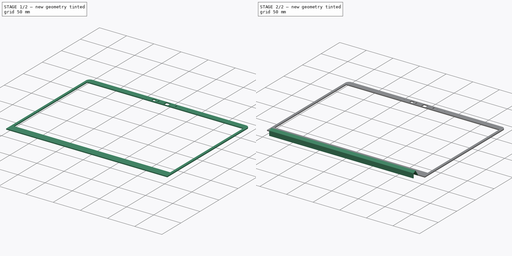
[diagram: build sequence overview — one tinted view per stage of 2, left to right]
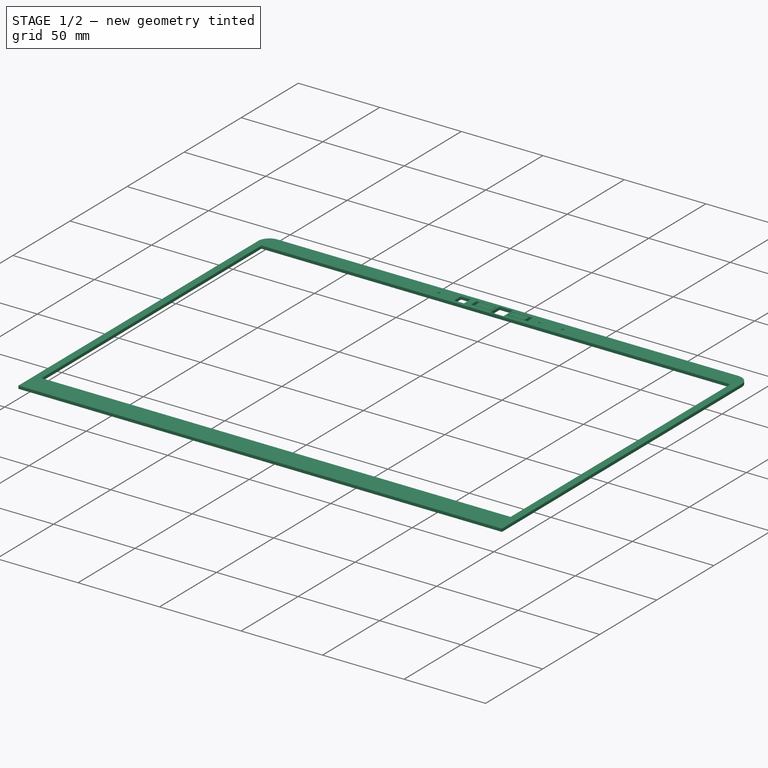
[diagram: stage 1 of 2 — iso view after this stage's code; geometry added in this stage tinted green]
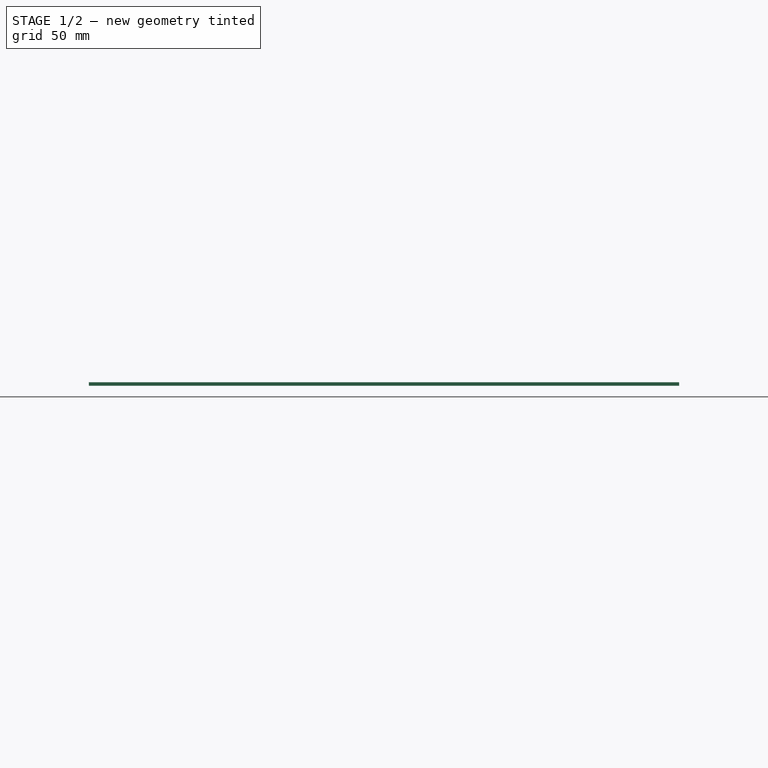
[diagram: stage 1 of 2 — front view after this stage's code; geometry added in this stage tinted green]
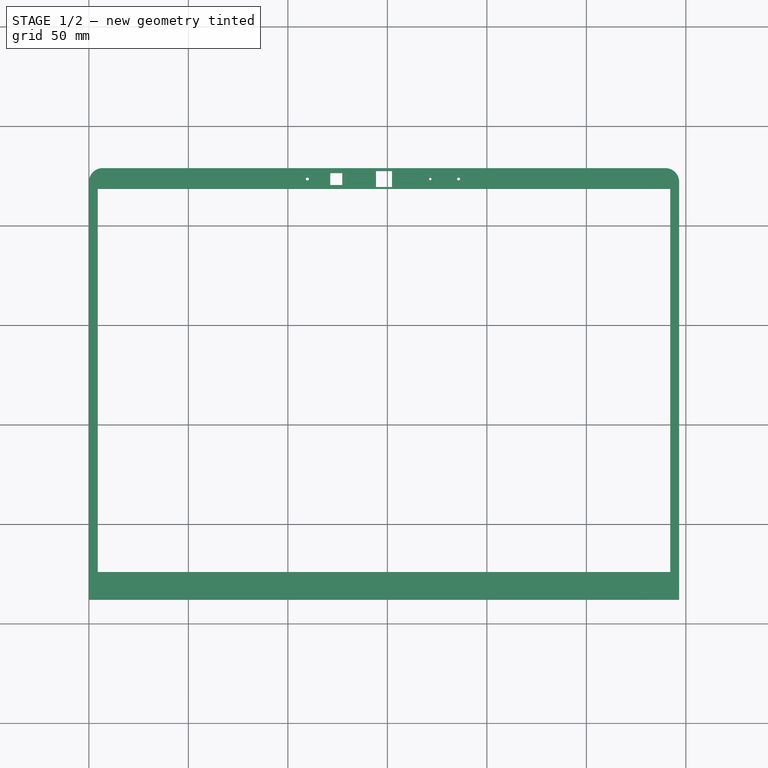
[diagram: stage 1 of 2 — top view after this stage's code; geometry added in this stage tinted green]
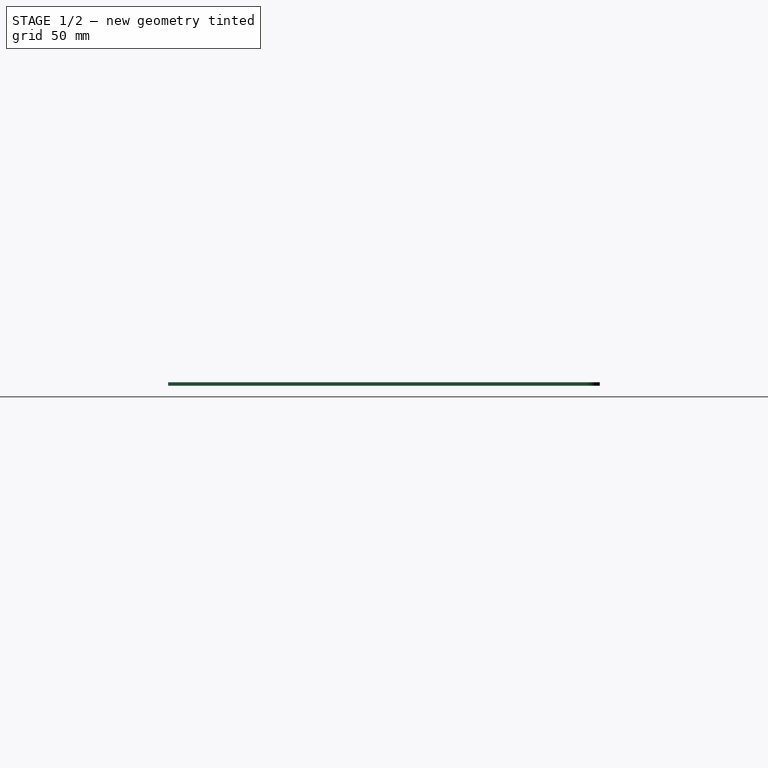
[diagram: stage 1 of 2 — right view after this stage's code; geometry added in this stage tinted green]
FCSTD DOCUMENT  (FreeCAD 0.20R29603 (Git))
Label: Bezel
License: All rights reserved
LicenseURL: http://en.wikipedia.org/wiki/All_rights_reserved
objects: Sketcher::SketchObject×3, PartDesign::Pad×2, PartDesign::Pocket×1, PartDesign::Body×1
note: 10 computed .brp shape members not serialized (recipe doc carries the construction recipe); baked Part::Feature solids carry a one-line shape summary decoded from their .brp

FEATURE [Sketcher::SketchObject] Sketch009  label="Sketch_BezelMain"
  AttachmentOffset = pos=(0,0,12.53) rot=(0,0,1;0rad)
  FullyConstrained = true
  MapMode = 5
  Placement = pos=(0,0,12.53) rot=(0,0,1;0rad)
  Support = -> [XY_Plane002]
  expr: .AttachmentOffset.Base.z = 15.88 - 3.35
  sketch-geometry (36):
    g0: LineSegment StartX=0 StartY=0 StartZ=0 EndX=296.63 EndY=0 EndZ=0
    g1: LineSegment StartX=296.63 StartY=0 StartZ=0 EndX=296.63 EndY=228.98 EndZ=0
    g2: LineSegment StartX=296.63 StartY=228.98 StartZ=0 EndX=0 EndY=228.98 EndZ=0
    g3: LineSegment StartX=0 StartY=228.98 StartZ=0 EndX=0 EndY=0 EndZ=0
    g4: LineSegment StartX=7 StartY=228.98 StartZ=0 EndX=289.63 EndY=228.98 EndZ=0
    g5: LineSegment StartX=296.63 StartY=11.98 StartZ=0 EndX=0 EndY=11.98 EndZ=0
    g6: LineSegment StartX=296.63 StartY=221.98 StartZ=0 EndX=296.63 EndY=11.98 EndZ=0
    g7: LineSegment StartX=0 StartY=11.98 StartZ=0 EndX=0 EndY=221.98 EndZ=0
    g8: ArcOfCircle CenterX=7 CenterY=221.98 CenterZ=0 NormalX=0 NormalY=0 NormalZ=1 AngleXU=0 Radius=7 StartAngle=1.5708 EndAngle=3.14159
    g9: GeomPoint X=0 Y=228.98 Z=0
    g10: ArcOfCircle CenterX=289.63 CenterY=221.98 CenterZ=0 NormalX=0 NormalY=0 NormalZ=1 AngleXU=0 Radius=7 StartAngle=-9e-16 EndAngle=1.5708
    g11: GeomPoint X=296.63 Y=228.98 Z=0
    g12: LineSegment StartX=4.5 StartY=218.48 StartZ=0 EndX=292.13 EndY=218.48 EndZ=0
    g13: LineSegment StartX=292.13 StartY=218.48 StartZ=0 EndX=292.13 EndY=25.98 EndZ=0
    g14: LineSegment StartX=292.13 StartY=25.98 StartZ=0 EndX=4.5 EndY=25.98 EndZ=0
    g15: LineSegment StartX=4.5 StartY=25.98 StartZ=0 EndX=4.5 EndY=218.48 EndZ=0
    g16: LineSegment StartX=144.315 StartY=227.48 StartZ=0 EndX=152.315 EndY=227.48 EndZ=0
    g17: LineSegment StartX=152.315 StartY=227.48 StartZ=0 EndX=152.315 EndY=219.48 EndZ=0
    g18: LineSegment StartX=152.315 StartY=219.48 StartZ=0 EndX=144.315 EndY=219.48 EndZ=0
    g19: LineSegment StartX=144.315 StartY=219.48 StartZ=0 EndX=144.315 EndY=227.48 EndZ=0
    g20: LineSegment StartX=144.315 StartY=227.48 StartZ=0 EndX=152.315 EndY=219.48 EndZ=0
    g21: LineSegment StartX=152.315 StartY=227.48 StartZ=0 EndX=144.315 EndY=219.48 EndZ=0
    g22: Circle CenterX=148.315 CenterY=223.48 CenterZ=0 NormalX=0 NormalY=0 NormalZ=1 AngleXU=0 Radius=1.5
    g23: Circle CenterX=171.565 CenterY=223.48 CenterZ=0 NormalX=0 NormalY=0 NormalZ=1 AngleXU=0 Radius=0.625
    g24: LineSegment StartX=148.315 StartY=223.48 StartZ=0 EndX=0 EndY=223.48 EndZ=0
    g25: LineSegment StartX=148.315 StartY=223.48 StartZ=0 EndX=296.63 EndY=223.48 EndZ=0
    g26: Circle CenterX=185.815 CenterY=223.48 CenterZ=0 NormalX=0 NormalY=0 NormalZ=1 AngleXU=0 Radius=0.75
    g27: LineSegment StartX=121.315 StartY=226.48 StartZ=0 EndX=127.315 EndY=226.48 EndZ=0
    g28: LineSegment StartX=127.315 StartY=226.48 StartZ=0 EndX=127.315 EndY=220.48 EndZ=0
    g29: LineSegment StartX=127.315 StartY=220.48 StartZ=0 EndX=121.315 EndY=220.48 EndZ=0
    g30: LineSegment StartX=121.315 StartY=220.48 StartZ=0 EndX=121.315 EndY=226.48 EndZ=0
    g31: LineSegment StartX=121.315 StartY=226.48 StartZ=0 EndX=124.315 EndY=223.48 EndZ=0
    g32: LineSegment StartX=124.315 StartY=223.48 StartZ=0 EndX=127.315 EndY=226.48 EndZ=0
    g33: LineSegment StartX=127.315 StartY=220.48 StartZ=0 EndX=124.315 EndY=223.48 EndZ=0
    g34: LineSegment StartX=124.315 StartY=223.48 StartZ=0 EndX=121.315 EndY=220.48 EndZ=0
    g35: Circle CenterX=109.815 CenterY=223.48 CenterZ=0 NormalX=0 NormalY=0 NormalZ=1 AngleXU=0 Radius=0.75
  constraints (97):
    c: Coincident(g0,g1)
    c: Coincident(g1,g2)
    c: Coincident(g3,g0)
    c: Horizontal(g0)
    c: Horizontal(g2)
    c: Vertical(g1)
    c: Vertical(g3)
    c: Coincident(g0,g-1)
    c: DistanceX(g0,g0) = 296.63
    c: DistanceY(g1,g1) = 228.98
    c: PointOnObject(g9,g3)
    c: Coincident(g11,g1)
    c: Horizontal(g4)
    c: PointOnObject(g5,g1)
    c: PointOnObject(g5,g3)
    c: Horizontal(g5)
    c: DistanceY(g5,g11) = 217
    c: Coincident(g6,g5)
    c: Coincident(g7,g5)
    c: PointOnObject(g9,g4)
    c: PointOnObject(g9,g7)
    c: Tangent(g4,g8) = 1.5708
    c: Tangent(g7,g8) = 1.5708
    c: Radius(g8) = 7
    c: PointOnObject(g11,g4)
    c: PointOnObject(g11,g6)
    c: Tangent(g4,g10) = 1.5708
    c: Tangent(g6,g10) = 1.5708
    c: Radius(g10) = 7
    c: Horizontal(g12)
    c: Coincident(g12,g13)
    c: Vertical(g13)
    c: Coincident(g13,g14)
    c: Horizontal(g14)
    c: Coincident(g14,g15)
    c: Coincident(g15,g12)
    c: Vertical(g15)
    c: DistanceY(g12,g4) = 10.5
    c: DistanceY(g5,g14) = 14
    c: DistanceX(g5,g14) = 4.5
    c: DistanceX(g13,g5) = 4.5
    c: Coincident(g16,g17)
    c: Coincident(g17,g18)
    c: Coincident(g18,g19)
    c: Coincident(g19,g16)
    c: Horizontal(g16)
    c: Horizontal(g18)
    c: Vertical(g17)
    c: Vertical(g19)
    c: DistanceX(g18,g17) = 8
    c: Equal(g18,g17)
    c: DistanceY(g12,g18) = 1
    c: Coincident(g20,g16)
    c: Coincident(g20,g17)
    c: Coincident(g21,g16)
    c: Coincident(g21,g18)
    c: PointOnObject(g22,g21)
    c: PointOnObject(g22,g20)
    c: Radius(g22) = 1.5
    c: Radius(g23) = 0.625
    c: Coincident(g24,g22)
    c: PointOnObject(g24,g3)
    c: Horizontal(g24)
    c: Coincident(g25,g22)
    c: PointOnObject(g25,g1)
    c: Horizontal(g25)
    c: Equal(g24,g25)
    c: PointOnObject(g23,g25)
    c: PointOnObject(g26,g25)
    c: DistanceX(g23,g26) = 14.25
    c: Radius(g26) = 0.75
    c: Coincident(g27,g28)
    c: Coincident(g28,g29)
    c: Coincident(g29,g30)
    c: Coincident(g30,g27)
    c: Horizontal(g27)
    c: Horizontal(g29)
    c: Vertical(g28)
    c: Vertical(g30)
    c: Equal(g28,g29)
    c: DistanceX(g29,g29) = 6
    c: Coincident(g31,g27)
    c: PointOnObject(g31,g24)
    c: Coincident(g32,g31)
    c: Coincident(g32,g27)
    c: Coincident(g33,g28)
    c: Coincident(g33,g31)
    c: Coincident(g34,g31)
    c: Coincident(g34,g29)
    c: Equal(g31,g33)
    c: Equal(g32,g34)
    c: PointOnObject(g35,g24)
    c: DistanceX(g35,g29) = 11.5
    c: Radius(g35) = 0.75
    c: DistanceX(g17,g23) = 19.25
    c: DistanceX(g28,g18) = 17
    c: Coincident(g3,g2)
FEATURE [PartDesign::Pad] Pad002  label="Pad_BezelMain"
  Direction = (0,0,1)
  Length = 1.78
  Length2 = 10
  Profile = -> Sketch009
  ReferenceAxis = -> Sketch009 [N_Axis]
  Reversed = true
  Type = 0
FEATURE [Sketcher::SketchObject] Sketch  label="Sketch_BezelSwitches"
  ExternalGeometry = -> [Sketch009]
  FullyConstrained = false
  MapMode = 2
  Placement = pos=(0,0,12.53) rot=(0,0,1;0rad)
  Support = -> [Sketch009]
  sketch-geometry (24):
    g0: LineSegment StartX=133.065 StartY=221.73 StartZ=0 EndX=143.065 EndY=221.73 EndZ=0
    g1: LineSegment StartX=143.065 StartY=221.73 StartZ=0 EndX=143.065 EndY=225.98 EndZ=0
    g2: LineSegment StartX=143.065 StartY=225.98 StartZ=0 EndX=133.065 EndY=225.98 EndZ=0
    g3: LineSegment StartX=133.065 StartY=225.98 StartZ=0 EndX=133.065 EndY=221.73 EndZ=0
    g4: LineSegment StartX=143.065 StartY=225.98 StartZ=0 EndX=143.065 EndY=226.23 EndZ=0
    g5: LineSegment StartX=143.065 StartY=221.73 StartZ=0 EndX=143.065 EndY=221.48 EndZ=0
    g6: LineSegment StartX=143.065 StartY=221.73 StartZ=0 EndX=143.315 EndY=221.73 EndZ=0
    g7: LineSegment StartX=131.065 StartY=226.23 StartZ=0 EndX=131.065 EndY=221.48 EndZ=0
    g8: LineSegment StartX=143.315 StartY=226.23 StartZ=0 EndX=143.315 EndY=221.48 EndZ=0
    g9: LineSegment StartX=143.315 StartY=226.23 StartZ=0 EndX=131.065 EndY=226.23 EndZ=0
    g10: LineSegment StartX=131.065 StartY=221.48 StartZ=0 EndX=143.315 EndY=221.48 EndZ=0
    g11: LineSegment StartX=153.565 StartY=221.73 StartZ=0 EndX=163.565 EndY=221.73 EndZ=0
    g12: LineSegment StartX=163.565 StartY=221.73 StartZ=0 EndX=163.565 EndY=225.98 EndZ=0
    g13: LineSegment StartX=163.565 StartY=225.98 StartZ=0 EndX=153.565 EndY=225.98 EndZ=0
    g14: LineSegment StartX=153.565 StartY=225.98 StartZ=0 EndX=153.565 EndY=221.73 EndZ=0
    g15: LineSegment StartX=153.315 StartY=221.48 StartZ=0 EndX=165.565 EndY=221.48 EndZ=0
    g16: LineSegment StartX=165.565 StartY=221.48 StartZ=0 EndX=165.565 EndY=226.23 EndZ=0
    g17: LineSegment StartX=165.565 StartY=226.23 StartZ=0 EndX=153.315 EndY=226.23 EndZ=0
    g18: LineSegment StartX=153.315 StartY=226.23 StartZ=0 EndX=153.315 EndY=221.48 EndZ=0
    g19: LineSegment StartX=143.315 StartY=221.73 StartZ=0 EndX=144.315 EndY=221.73 EndZ=0
    g20: LineSegment StartX=144.315 StartY=221.73 StartZ=0 EndX=152.315 EndY=221.73 EndZ=0
    g21: LineSegment StartX=153.315 StartY=221.48 StartZ=0 EndX=143.315 EndY=221.48 EndZ=0
    g22: LineSegment StartX=152.315 StartY=221.73 StartZ=0 EndX=153.315 EndY=221.73 EndZ=0
    g23: LineSegment StartX=153.315 StartY=221.73 StartZ=0 EndX=153.565 EndY=221.73 EndZ=0
  constraints (70):
    c: Coincident(g0,g1)
    c: Coincident(g1,g2)
    c: Coincident(g2,g3)
    c: Coincident(g3,g0)
    c: Horizontal(g0)
    c: Horizontal(g2)
    c: Vertical(g1)
    c: Vertical(g3)
    c: DistanceX(g2,g1) = 10
    c: DistanceY(g0,g2) = 4.25
    c: Coincident(g4,g1)
    c: Vertical(g4)
    c: Coincident(g5,g0)
    c: Vertical(g5)
    c: Coincident(g6,g0)
    c: Horizontal(g6)
    c: Equal(g5,g6)
    c: Equal(g5,g4)
    c: Coincident(g9,g8)
    c: Coincident(g9,g7)
    c: Horizontal(g9)
    c: Coincident(g10,g7)
    c: Coincident(g10,g8)
    c: Horizontal(g10)
    c: PointOnObject(g6,g8)
    c: PointOnObject(g5,g10)
    c: PointOnObject(g4,g9)
    c: DistanceX(g9,g9) = 12.25
    c: DistanceY(g7,g7) = 4.75
    c: Vertical(g7)
    c: Vertical(g8)
    c: DistanceY(g7,g-3) = 2.75
    c: Coincident(g11,g12)
    c: Coincident(g12,g13)
    c: Coincident(g13,g14)
    c: Coincident(g14,g11)
    c: Horizontal(g11)
    c: Horizontal(g13)
    c: Vertical(g12)
    c: Vertical(g14)
    c: Coincident(g15,g16)
    c: Coincident(g16,g17)
    c: Coincident(g17,g18)
    c: Coincident(g18,g15)
    c: Horizontal(g15)
    c: Horizontal(g17)
    c: Vertical(g16)
    c: Vertical(g18)
    c: Equal(g17,g9)
    c: Equal(g18,g8)
    c: Equal(g1,g14)
    c: Equal(g2,g13)
    c: Coincident(g6,g19)
    c: PointOnObject(g19,g-4)
    c: Horizontal(g19)
    c: Coincident(g19,g20)
    c: PointOnObject(g20,g-5)
    c: Horizontal(g20)
    c: Coincident(g15,g21)
    c: Coincident(g21,g8)
    c: Horizontal(g21)
    c: Coincident(g20,g22)
    c: PointOnObject(g22,g18)
    c: Horizontal(g22)
    c: Coincident(g22,g23)
    c: Coincident(g23,g11)
    c: Horizontal(g23)
    c: DistanceX(g19,g19) = 1
    c: Equal(g19,g22)
    c: Equal(g23,g6)
FEATURE [PartDesign::Pocket] Pocket  label="Pocket_BezelSwitches"
  BaseFeature = -> Pad002
  Direction = (0,0,-1)
  Length = 1.7799
  Length2 = 5
  Profile = -> Sketch
  ReferenceAxis = -> Sketch [N_Axis]
  Refine = true
  Type = 0
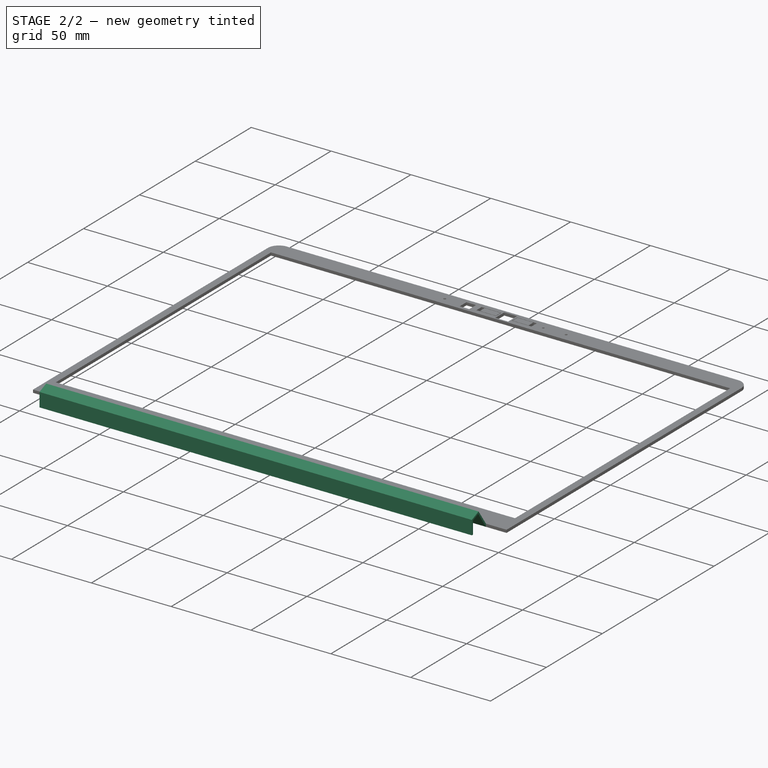
[diagram: stage 2 of 2 — iso view after this stage's code; geometry added in this stage tinted green]
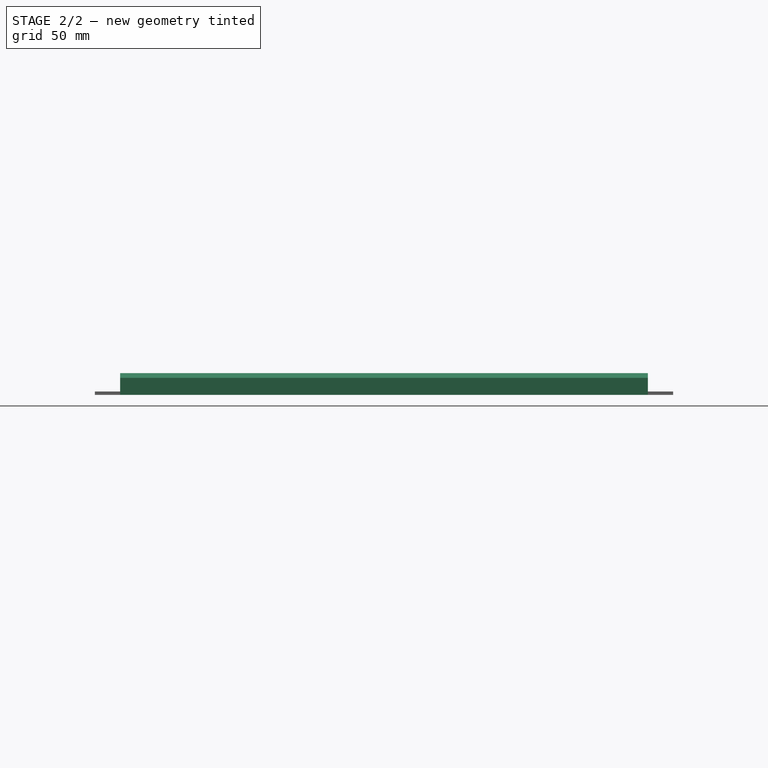
[diagram: stage 2 of 2 — front view after this stage's code; geometry added in this stage tinted green]
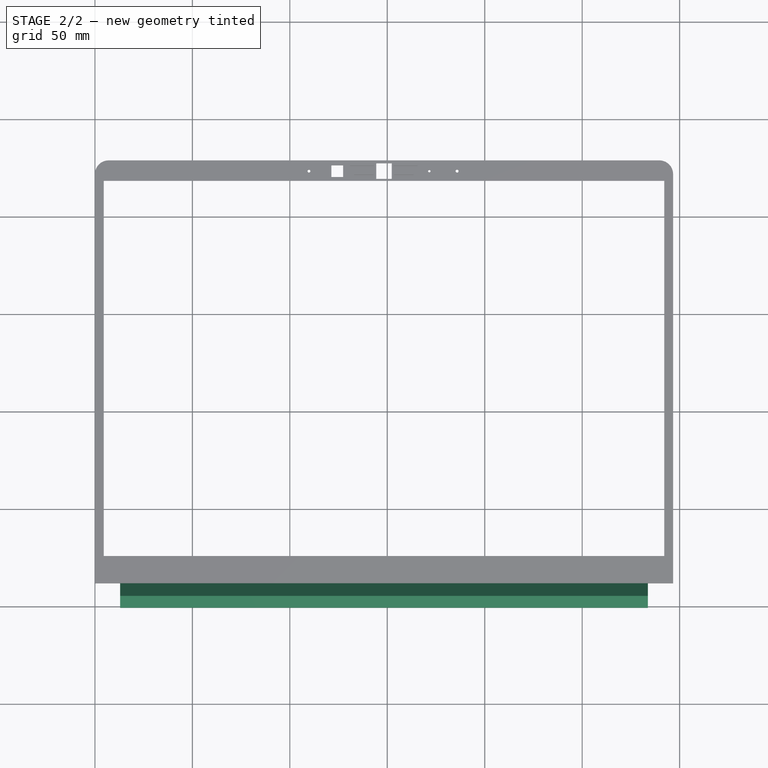
[diagram: stage 2 of 2 — top view after this stage's code; geometry added in this stage tinted green]
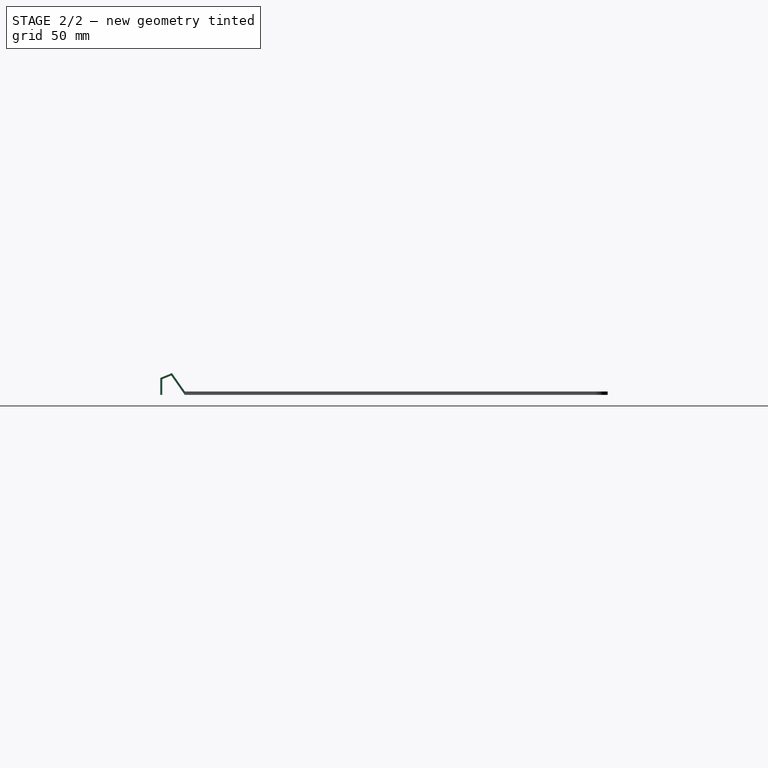
[diagram: stage 2 of 2 — right view after this stage's code; geometry added in this stage tinted green]
FEATURE [Sketcher::SketchObject] Sketch010
  ExternalGeometry = -> [Sketch009,Pocket]
  FullyConstrained = true
  MapMode = 5
  Placement = pos=(0,0,0) rot=(0.57735,0.57735,0.57735;2.0944rad)
  Support = -> [YZ_Plane002]
  sketch-geometry (8):
    g0: LineSegment StartX=11.98 StartY=12.53 StartZ=0 EndX=5.38387 EndY=21.9502 EndZ=0
    g1: LineSegment StartX=5.38387 StartY=21.9502 StartZ=0 EndX=-0.621346 EndY=19.4628 EndZ=0
    g2: LineSegment StartX=-0.621346 StartY=19.4628 StartZ=0 EndX=-0.621346 EndY=10.75 EndZ=0
    g3: LineSegment StartX=-0.621346 StartY=10.75 StartZ=0 EndX=0.378654 EndY=10.75 EndZ=0
    g4: LineSegment StartX=0.378654 StartY=10.75 StartZ=0 EndX=0.378654 EndY=18.7946 EndZ=0
    g5: LineSegment StartX=0.378654 StartY=18.7946 StartZ=0 EndX=5.02506 EndY=20.7192 EndZ=0
    g6: LineSegment StartX=5.02506 StartY=20.7192 StartZ=0 EndX=11.98 EndY=10.75 EndZ=0
    g7: LineSegment StartX=11.98 StartY=12.53 StartZ=0 EndX=11.98 EndY=10.75 EndZ=0
  constraints (23):
    c: Coincident(g0,g-3)
    c: Distance(g0) = 11.5
    c: Angle(g-4,g0) = 2.18166
    c: Coincident(g1,g0)
    c: Distance(g1) = 6.5
    c: Angle(g0,g1,g0) = 1.35263
    c: Coincident(g2,g1)
    c: Vertical(g2)
    c: DistanceY(g-4,g-4) = 0
    c: DistanceY(g-5,g2) = 0
    c: Coincident(g2,g3)
    c: Coincident(g3,g4)
    c: Coincident(g4,g5)
    c: Coincident(g5,g6)
    c: Parallel(g4,g2)
    c: Parallel(g5,g1)
    c: Coincident(g7,g0)
    c: Coincident(g7,g-5)
    c: Coincident(g7,g6)
    c: Distance(g5,g0) = 1
    c: Distance(g4,g2) = 1
    c: Horizontal(g3)
    c: Distance(g4,g1) = 1
FEATURE [PartDesign::Pad] Pad
  BaseFeature = -> Pocket
  Direction = (1,-2e-16,3e-16)
  Length = 283.73
  Length2 = -12.9
  Offset = 12.9
  Profile = -> Sketch010
  ReferenceAxis = -> Sketch010 [N_Axis]
  Refine = true
  Type = 4
FEATURE [PartDesign::Body] Body002  label="Bezel"
  Group = -> [Sketch009,Pad002,Sketch,Pocket,Sketch010,Pad]
  Origin = -> Origin002
  Tip = -> Pad
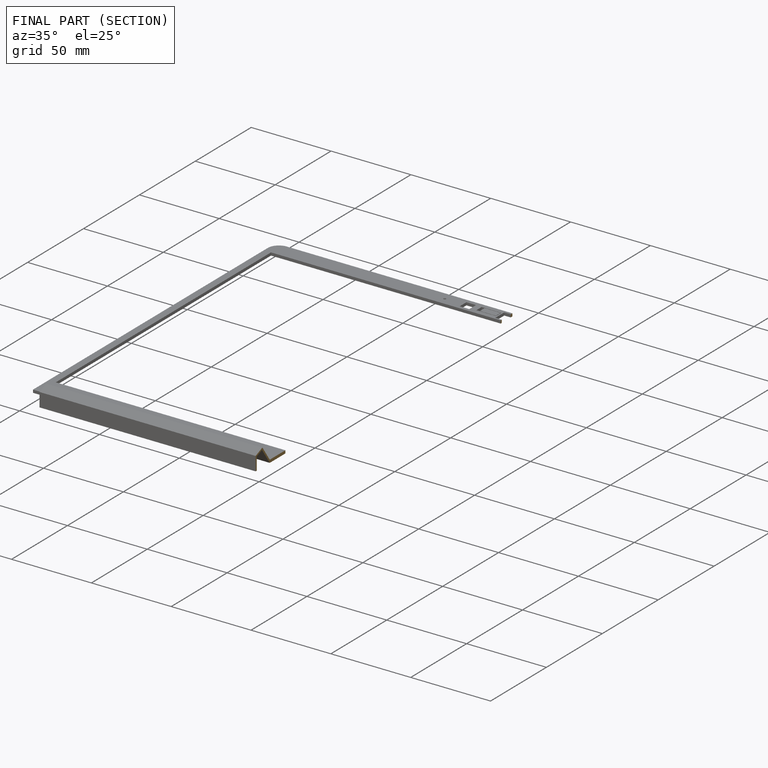
[diagram: finished part — half-section view (interior)]
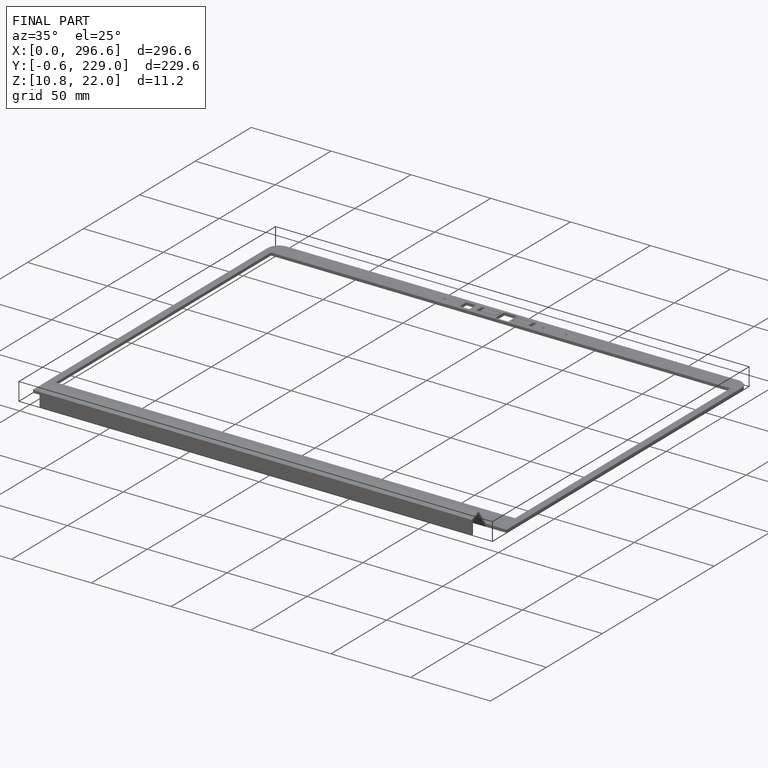
[diagram: finished part — iso view with bounding-box wireframe]
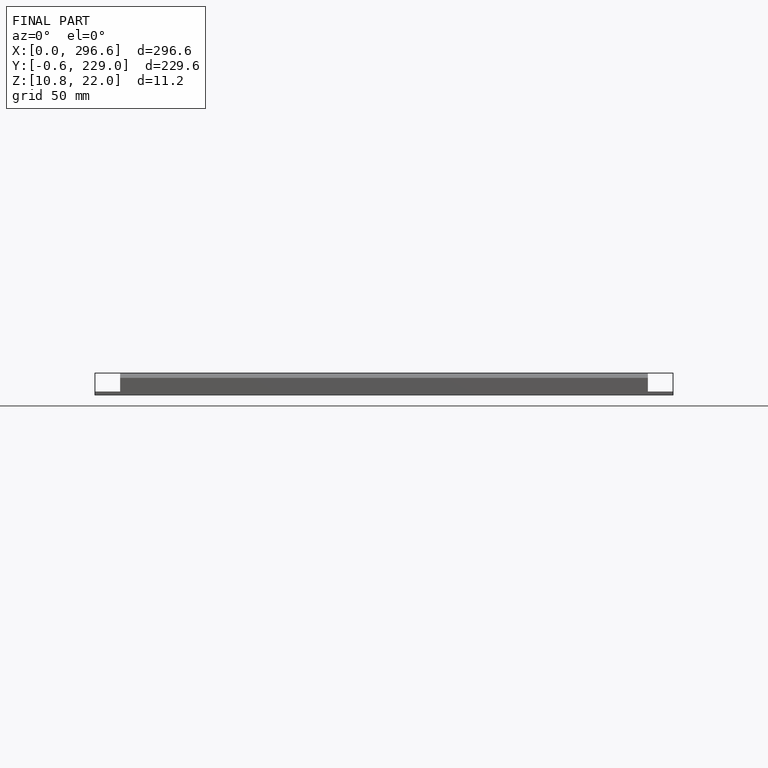
[diagram: finished part — front view with bounding-box wireframe]
